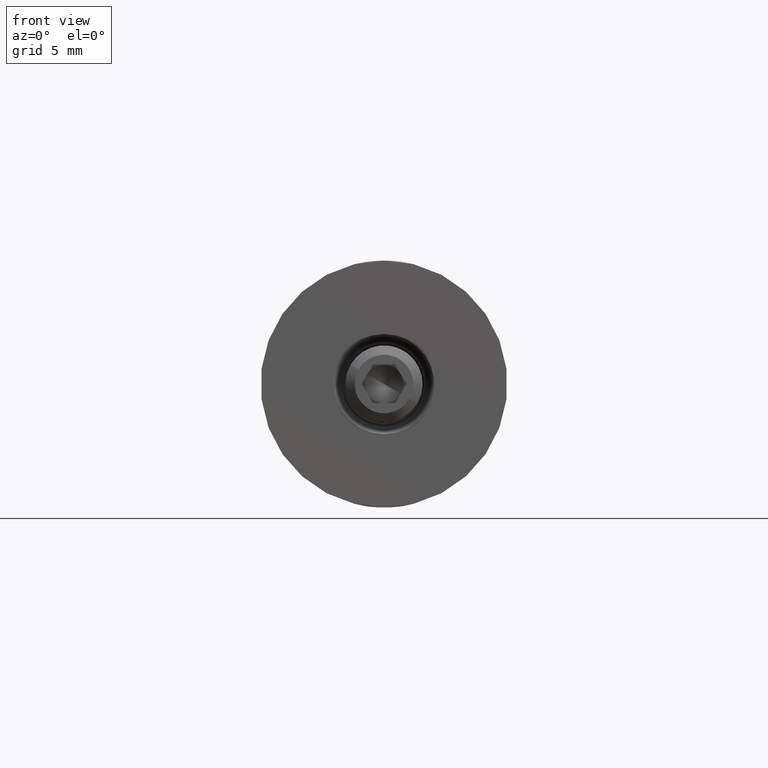
[diagram: clean part render]
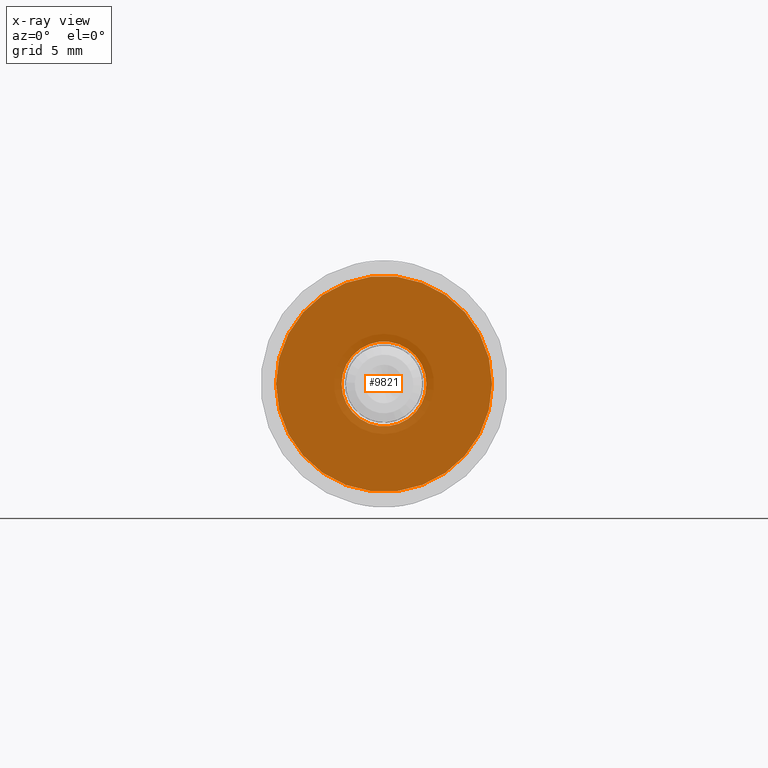
[diagram: x-ray — body ghosted, one internal face saturated and labeled with its STEP entity id]
A machine part, front view, then the same camera in x-ray: the body is ghosted and one INTERNAL B-rep face — a face not visible from any outside direction — is saturated and labeled: STEP entity #9821.
In plain terms, the highlighted planar face has unit normal (-0, 1, 0).
Its self-contained STEP definition (entity closure, byte-faithful):
#427 = ORIENTED_EDGE ( 'NONE', *, *, #5064, .F. ) ;
#812 = CARTESIAN_POINT ( 'NONE',  ( -5.378708259794119833E-16, -0.4999999999999987232, 0.000000000000000000 ) ) ;
#1462 = ORIENTED_EDGE ( 'NONE', *, *, #1596, .T. ) ;
#1596 = EDGE_CURVE ( 'NONE', #3682, #2581, #10322, .T. ) ;
#1787 = AXIS2_PLACEMENT_3D ( 'NONE', #11547, #3483, #6478 ) ;
#2293 = CIRCLE ( 'NONE', #9724, 7.000000000000001776 ) ;
#2549 = CARTESIAN_POINT ( 'NONE',  ( 2.750000000000000000, -0.4999999999999978351, 3.367778697655221505E-16 ) ) ;
#2581 = VERTEX_POINT ( 'NONE', #2549 ) ;
#3200 = AXIS2_PLACEMENT_3D ( 'NONE', #812, #6335, #4917 ) ;
#3483 = DIRECTION ( 'NONE',  ( -3.061616997868382648E-16, 1.000000000000000000, 0.000000000000000000 ) ) ;
#3682 = VERTEX_POINT ( 'NONE', #10138 ) ;
#4671 = CARTESIAN_POINT ( 'NONE',  ( -5.378708259794108986E-16, -0.5000000000000022204, 0.000000000000000000 ) ) ;
#4917 = DIRECTION ( 'NONE',  ( -1.000000000000000000, -3.154042683594194134E-16, 0.000000000000000000 ) ) ;
#4931 = AXIS2_PLACEMENT_3D ( 'NONE', #11966, #10709, #10658 ) ;
#5064 = EDGE_CURVE ( 'NONE', #13558, #8245, #2293, .T. ) ;
#5175 = DIRECTION ( 'NONE',  ( -3.061616997868382648E-16, 1.000000000000000000, -0.000000000000000000 ) ) ;
#5434 = ORIENTED_EDGE ( 'NONE', *, *, #12716, .T. ) ;
#6015 = DIRECTION ( 'NONE',  ( -3.061616997868382648E-16, 1.000000000000000000, -0.000000000000000000 ) ) ;
#6159 = CARTESIAN_POINT ( 'NONE',  ( -7.000000000000002665, -0.5000000000000043299, 0.000000000000000000 ) ) ;
#6208 = DIRECTION ( 'NONE',  ( -1.000000000000000000, -3.097720492815726180E-16, 0.000000000000000000 ) ) ;
#6335 = DIRECTION ( 'NONE',  ( -3.061616997868382648E-16, 1.000000000000000000, -0.000000000000000000 ) ) ;
#6478 = DIRECTION ( 'NONE',  ( -1.000000000000000000, -3.061616997868382648E-16, 0.000000000000000000 ) ) ;
#6531 = CARTESIAN_POINT ( 'NONE',  ( 7.000000000000000888, -0.5000000000000000000, 8.572527594031474176E-16 ) ) ;
#6585 = CARTESIAN_POINT ( 'NONE',  ( -5.378708259794108986E-16, -0.5000000000000022204, 0.000000000000000000 ) ) ;
#7054 = FACE_OUTER_BOUND ( 'NONE', #9114, .T. ) ;
#7789 = DIRECTION ( 'NONE',  ( -1.000000000000000000, -3.097720492815726180E-16, 0.000000000000000000 ) ) ;
#8245 = VERTEX_POINT ( 'NONE', #6531 ) ;
#9114 = EDGE_LOOP ( 'NONE', ( #427, #11677 ) ) ;
#9724 = AXIS2_PLACEMENT_3D ( 'NONE', #4671, #6015, #6208 ) ;
#9821 = ADVANCED_FACE ( 'NONE', ( #7054, #10630 ), #10184, .F. ) ;
#10138 = CARTESIAN_POINT ( 'NONE',  ( -2.750000000000000888, -0.4999999999999995559, 0.000000000000000000 ) ) ;
#10184 = PLANE ( 'NONE',  #1787 ) ;
#10322 = CIRCLE ( 'NONE', #3200, 2.750000000000000444 ) ;
#10630 = FACE_BOUND ( 'NONE', #14344, .T. ) ;
#10658 = DIRECTION ( 'NONE',  ( -1.000000000000000000, -3.154042683594194134E-16, 0.000000000000000000 ) ) ;
#10709 = DIRECTION ( 'NONE',  ( -3.061616997868382648E-16, 1.000000000000000000, -0.000000000000000000 ) ) ;
#11547 = CARTESIAN_POINT ( 'NONE',  ( 7.000000000000000888, -0.4999999999999987232, 0.000000000000000000 ) ) ;
#11677 = ORIENTED_EDGE ( 'NONE', *, *, #14514, .F. ) ;
#11966 = CARTESIAN_POINT ( 'NONE',  ( -5.378708259794119833E-16, -0.4999999999999987232, 0.000000000000000000 ) ) ;
#12483 = CIRCLE ( 'NONE', #4931, 2.750000000000000444 ) ;
#12716 = EDGE_CURVE ( 'NONE', #2581, #3682, #12483, .T. ) ;
#13558 = VERTEX_POINT ( 'NONE', #6159 ) ;
#14138 = CIRCLE ( 'NONE', #16544, 7.000000000000001776 ) ;
#14344 = EDGE_LOOP ( 'NONE', ( #1462, #5434 ) ) ;
#14514 = EDGE_CURVE ( 'NONE', #8245, #13558, #14138, .T. ) ;
#16544 = AXIS2_PLACEMENT_3D ( 'NONE', #6585, #5175, #7789 ) ;